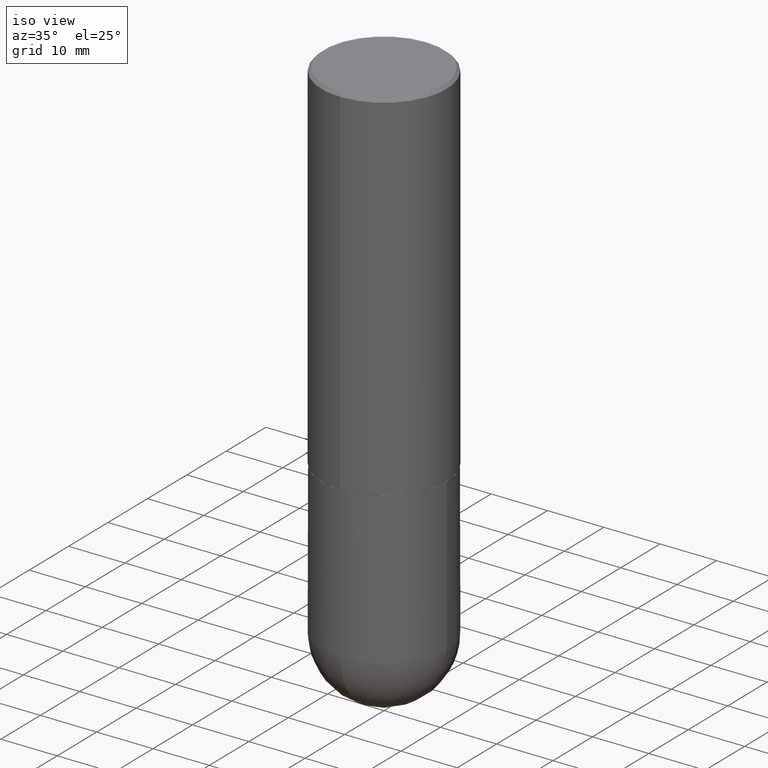
[diagram: clean part render]
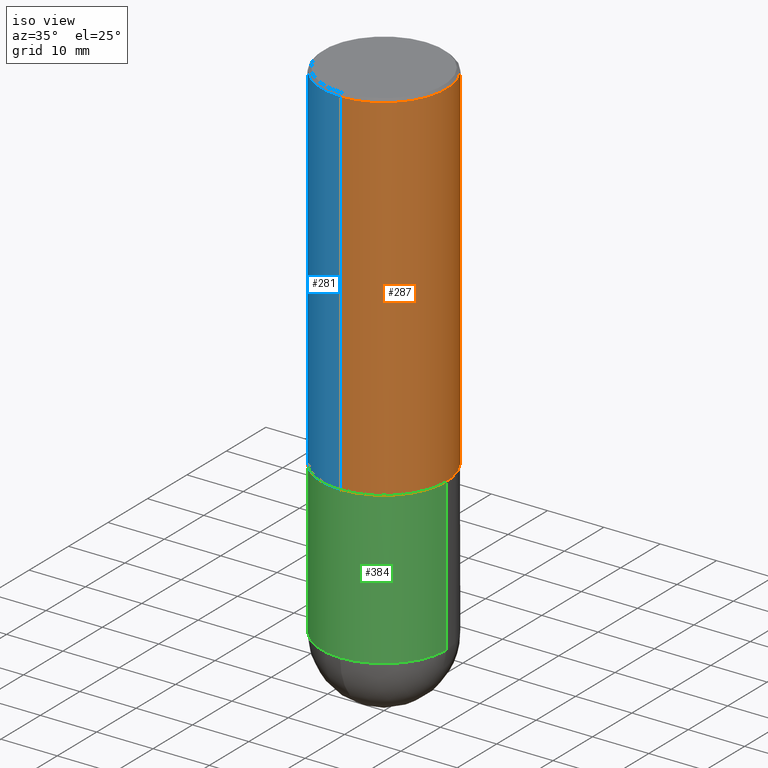
[diagram: same view with three faces highlighted in distinct colors, each labeled with its STEP entity id]
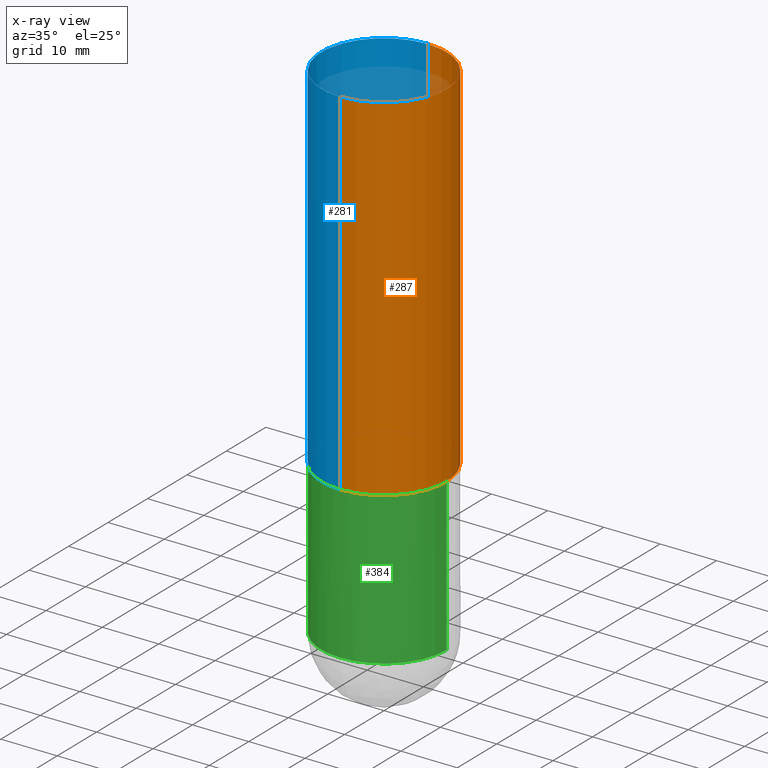
[diagram: x-ray of the same camera — body ghosted, the three highlighted faces saturated]
A machine part, iso view with three faces highlighted in distinct colors.
The next image is the same camera in x-ray (body ghosted, the three faces saturated) — at least one of them is partly hidden behind the body in this view.
Their STEP definitions:

[orange] entity #287 — the highlighted cylindrical surface (partial cylindrical patch) has radius 11.1125 mm, axis along (-0, 0, 1).
#2 = AXIS2_PLACEMENT_3D ( 'NONE', #242, #365, #87 ) ;
#6 = DIRECTION ( 'NONE',  ( -2.445589378329462952E-29, 3.491308672669929878E-15, 1.000000000000000000 ) ) ;
#48 = VERTEX_POINT ( 'NONE', #164 ) ;
#66 = LINE ( 'NONE', #161, #68 ) ;
#68 = VECTOR ( 'NONE', #224, 39.37007874015748143 ) ;
#78 = AXIS2_PLACEMENT_3D ( 'NONE', #371, #177, #249 ) ;
#87 = DIRECTION ( 'NONE',  ( -6.982962677686265922E-15, -1.000000000000000000, 3.491308672669929878E-15 ) ) ;
#90 = CIRCLE ( 'NONE', #78, 0.4375000000000000000 ) ;
#100 = CIRCLE ( 'NONE', #323, 0.4375000000000002776 ) ;
#154 = CYLINDRICAL_SURFACE ( 'NONE', #2, 0.4375000000000001110 ) ;
#157 = EDGE_CURVE ( 'NONE', #48, #326, #100, .T. ) ;
#161 = CARTESIAN_POINT ( 'NONE',  ( 3.108624468950438708E-15, 0.4375000000000001110, -1.527447544293094691E-15 ) ) ;
#164 = CARTESIAN_POINT ( 'NONE',  ( -3.055046171487681732E-15, -0.4375000000000089928, -2.498999999999998778 ) ) ;
#166 = DIRECTION ( 'NONE',  ( -2.445589378329463232E-29, 3.491308672669929878E-15, 1.000000000000000000 ) ) ;
#177 = DIRECTION ( 'NONE',  ( -2.445589378329462952E-29, 3.491308672669929878E-15, 1.000000000000000000 ) ) ;
#183 = FACE_OUTER_BOUND ( 'NONE', #204, .T. ) ;
#194 = EDGE_CURVE ( 'NONE', #48, #399, #350, .T. ) ;
#196 = CARTESIAN_POINT ( 'NONE',  ( -3.001467874025043875E-15, -0.4375000000000000555, -0.01999999999999857100 ) ) ;
#203 = ORIENTED_EDGE ( 'NONE', *, *, #325, .F. ) ;
#204 = EDGE_LOOP ( 'NONE', ( #295, #235, #203, #297 ) ) ;
#224 = DIRECTION ( 'NONE',  ( -2.445589378329463232E-29, 3.491308672669929878E-15, 1.000000000000000000 ) ) ;
#235 = ORIENTED_EDGE ( 'NONE', *, *, #398, .T. ) ;
#242 = CARTESIAN_POINT ( 'NONE',  ( 0.000000000000000000, 0.000000000000000000, 0.000000000000000000 ) ) ;
#249 = DIRECTION ( 'NONE',  ( -6.982962677686265133E-15, -1.000000000000000000, 3.492862791899308071E-15 ) ) ;
#253 = DIRECTION ( 'NONE',  ( -6.982962677686265133E-15, -1.000000000000000000, 3.746534391310987190E-15 ) ) ;
#287 = ADVANCED_FACE ( 'NONE', ( #183 ), #154, .T. ) ;
#295 = ORIENTED_EDGE ( 'NONE', *, *, #157, .T. ) ;
#297 = ORIENTED_EDGE ( 'NONE', *, *, #194, .F. ) ;
#313 = VERTEX_POINT ( 'NONE', #373 ) ;
#314 = CARTESIAN_POINT ( 'NONE',  ( -3.055046171487742080E-15, -0.4375000000000001110, 1.527447544293094691E-15 ) ) ;
#318 = CARTESIAN_POINT ( 'NONE',  ( 3.108624468950470262E-15, 0.4374999999999915068, -2.499000000000001886 ) ) ;
#323 = AXIS2_PLACEMENT_3D ( 'NONE', #355, #6, #253 ) ;
#325 = EDGE_CURVE ( 'NONE', #399, #313, #90, .T. ) ;
#326 = VERTEX_POINT ( 'NONE', #318 ) ;
#350 = LINE ( 'NONE', #314, #395 ) ;
#355 = CARTESIAN_POINT ( 'NONE',  ( 6.111527856445329127E-29, -8.724780373002155797E-15, -2.499000000000000110 ) ) ;
#365 = DIRECTION ( 'NONE',  ( -2.445589378329462952E-29, 3.491308672669929878E-15, 1.000000000000000000 ) ) ;
#371 = CARTESIAN_POINT ( 'NONE',  ( 4.891178756658950356E-31, -6.982617345339894070E-17, -0.02000000000000009756 ) ) ;
#373 = CARTESIAN_POINT ( 'NONE',  ( 3.055046171487741686E-15, 0.4374999999999998890, -0.02000000000000162759 ) ) ;
#395 = VECTOR ( 'NONE', #166, 39.37007874015748143 ) ;
#398 = EDGE_CURVE ( 'NONE', #326, #313, #66, .T. ) ;
#399 = VERTEX_POINT ( 'NONE', #196 ) ;

[blue] entity #281 — the highlighted cylindrical surface (partial cylindrical patch) has radius 11.1125 mm, axis along (-0, 0, 1).
#16 = ORIENTED_EDGE ( 'NONE', *, *, #398, .F. ) ;
#48 = VERTEX_POINT ( 'NONE', #164 ) ;
#66 = LINE ( 'NONE', #161, #68 ) ;
#68 = VECTOR ( 'NONE', #224, 39.37007874015748143 ) ;
#93 = EDGE_CURVE ( 'NONE', #326, #48, #379, .T. ) ;
#119 = AXIS2_PLACEMENT_3D ( 'NONE', #381, #250, #215 ) ;
#161 = CARTESIAN_POINT ( 'NONE',  ( 3.108624468950438708E-15, 0.4375000000000001110, -1.527447544293094691E-15 ) ) ;
#164 = CARTESIAN_POINT ( 'NONE',  ( -3.055046171487681732E-15, -0.4375000000000089928, -2.498999999999998778 ) ) ;
#166 = DIRECTION ( 'NONE',  ( -2.445589378329463232E-29, 3.491308672669929878E-15, 1.000000000000000000 ) ) ;
#173 = EDGE_LOOP ( 'NONE', ( #16, #206, #403, #305 ) ) ;
#180 = CYLINDRICAL_SURFACE ( 'NONE', #387, 0.4375000000000001110 ) ;
#194 = EDGE_CURVE ( 'NONE', #48, #399, #350, .T. ) ;
#196 = CARTESIAN_POINT ( 'NONE',  ( -3.001467874025043875E-15, -0.4375000000000000555, -0.01999999999999857100 ) ) ;
#206 = ORIENTED_EDGE ( 'NONE', *, *, #93, .T. ) ;
#208 = CARTESIAN_POINT ( 'NONE',  ( 0.000000000000000000, 0.000000000000000000, 0.000000000000000000 ) ) ;
#215 = DIRECTION ( 'NONE',  ( -6.982962677686265133E-15, -1.000000000000000000, 3.492862791899308071E-15 ) ) ;
#221 = DIRECTION ( 'NONE',  ( -6.982962677686265133E-15, -1.000000000000000000, 3.746534391310987190E-15 ) ) ;
#224 = DIRECTION ( 'NONE',  ( -2.445589378329463232E-29, 3.491308672669929878E-15, 1.000000000000000000 ) ) ;
#250 = DIRECTION ( 'NONE',  ( -2.445589378329462952E-29, 3.491308672669929878E-15, 1.000000000000000000 ) ) ;
#281 = ADVANCED_FACE ( 'NONE', ( #332 ), #180, .T. ) ;
#289 = CIRCLE ( 'NONE', #119, 0.4375000000000000000 ) ;
#298 = DIRECTION ( 'NONE',  ( -2.445589378329462952E-29, 3.491308672669929878E-15, 1.000000000000000000 ) ) ;
#305 = ORIENTED_EDGE ( 'NONE', *, *, #353, .F. ) ;
#313 = VERTEX_POINT ( 'NONE', #373 ) ;
#314 = CARTESIAN_POINT ( 'NONE',  ( -3.055046171487742080E-15, -0.4375000000000001110, 1.527447544293094691E-15 ) ) ;
#318 = CARTESIAN_POINT ( 'NONE',  ( 3.108624468950470262E-15, 0.4374999999999915068, -2.499000000000001886 ) ) ;
#326 = VERTEX_POINT ( 'NONE', #318 ) ;
#332 = FACE_OUTER_BOUND ( 'NONE', #173, .T. ) ;
#340 = CARTESIAN_POINT ( 'NONE',  ( 6.111527856445329127E-29, -8.724780373002155797E-15, -2.499000000000000110 ) ) ;
#350 = LINE ( 'NONE', #314, #395 ) ;
#353 = EDGE_CURVE ( 'NONE', #313, #399, #289, .T. ) ;
#354 = DIRECTION ( 'NONE',  ( -6.982962677686265922E-15, -1.000000000000000000, 3.491308672669929878E-15 ) ) ;
#373 = CARTESIAN_POINT ( 'NONE',  ( 3.055046171487741686E-15, 0.4374999999999998890, -0.02000000000000162759 ) ) ;
#379 = CIRCLE ( 'NONE', #408, 0.4375000000000002776 ) ;
#380 = DIRECTION ( 'NONE',  ( -2.445589378329462952E-29, 3.491308672669929878E-15, 1.000000000000000000 ) ) ;
#381 = CARTESIAN_POINT ( 'NONE',  ( 4.891178756658950356E-31, -6.982617345339894070E-17, -0.02000000000000009756 ) ) ;
#387 = AXIS2_PLACEMENT_3D ( 'NONE', #208, #298, #354 ) ;
#395 = VECTOR ( 'NONE', #166, 39.37007874015748143 ) ;
#398 = EDGE_CURVE ( 'NONE', #326, #313, #66, .T. ) ;
#399 = VERTEX_POINT ( 'NONE', #196 ) ;
#403 = ORIENTED_EDGE ( 'NONE', *, *, #194, .T. ) ;
#408 = AXIS2_PLACEMENT_3D ( 'NONE', #340, #380, #221 ) ;

[green] entity #384 — the highlighted cylindrical surface (partial cylindrical patch) has radius 11.1125 mm, axis along (-0, 0, 1).
#3 = CARTESIAN_POINT ( 'NONE',  ( 0.4374999999999998890, -3.055046171487740897E-15, 2.133327339410721209E-29 ) ) ;
#8 = VERTEX_POINT ( 'NONE', #30 ) ;
#9 = CARTESIAN_POINT ( 'NONE',  ( 6.113672015462842613E-29, -8.728703347107864943E-15, -2.500000000000000000 ) ) ;
#30 = CARTESIAN_POINT ( 'NONE',  ( 0.4375000000000000000, -1.178374951859560505E-14, -2.500000000000000000 ) ) ;
#33 = DIRECTION ( 'NONE',  ( 1.000000000000000000, -6.982962677686265133E-15, 0.000000000000000000 ) ) ;
#53 = AXIS2_PLACEMENT_3D ( 'NONE', #63, #348, #280 ) ;
#55 = CARTESIAN_POINT ( 'NONE',  ( 8.711982622034549126E-29, -1.243840226962870597E-14, -3.562500000000000000 ) ) ;
#63 = CARTESIAN_POINT ( 'NONE',  ( 0.000000000000000000, 0.000000000000000000, 0.000000000000000000 ) ) ;
#70 = CARTESIAN_POINT ( 'NONE',  ( 8.711982622034549126E-29, -1.243840226962870597E-14, -3.562500000000000000 ) ) ;
#75 = DIRECTION ( 'NONE',  ( -2.445468806185136877E-29, 3.491481338843145188E-15, 1.000000000000000000 ) ) ;
#77 = CARTESIAN_POINT ( 'NONE',  ( -0.4374999999999998890, 3.108624468950437524E-15, -2.152034101986520964E-29 ) ) ;
#79 = ORIENTED_EDGE ( 'NONE', *, *, #152, .T. ) ;
#95 = CARTESIAN_POINT ( 'NONE',  ( 0.4374999999999998890, -1.363859897985603030E-14, -3.562500000000000000 ) ) ;
#99 = DIRECTION ( 'NONE',  ( 1.000000000000000000, -6.982962677686265133E-15, 0.000000000000000000 ) ) ;
#104 = FACE_OUTER_BOUND ( 'NONE', #117, .T. ) ;
#117 = EDGE_LOOP ( 'NONE', ( #186, #79, #269, #144, #210 ) ) ;
#130 = CYLINDRICAL_SURFACE ( 'NONE', #53, 0.4374999999999998890 ) ;
#144 = ORIENTED_EDGE ( 'NONE', *, *, #317, .T. ) ;
#152 = EDGE_CURVE ( 'NONE', #397, #293, #402, .T. ) ;
#158 = EDGE_CURVE ( 'NONE', #243, #8, #227, .T. ) ;
#186 = ORIENTED_EDGE ( 'NONE', *, *, #278, .F. ) ;
#200 = VECTOR ( 'NONE', #234, 39.37007874015748143 ) ;
#210 = ORIENTED_EDGE ( 'NONE', *, *, #158, .F. ) ;
#226 = CARTESIAN_POINT ( 'NONE',  ( -0.4375000000000000000, -7.474928339417847141E-15, -2.500000000000000000 ) ) ;
#227 = CIRCLE ( 'NONE', #359, 0.4375000000000000000 ) ;
#229 = DIRECTION ( 'NONE',  ( 1.000000000000000000, -6.982962677686265133E-15, 0.000000000000000000 ) ) ;
#230 = DIRECTION ( 'NONE',  ( -2.445468806185136597E-29, 3.491481338843145583E-15, 1.000000000000000000 ) ) ;
#234 = DIRECTION ( 'NONE',  ( -2.445468806185136877E-29, 3.491481338843145188E-15, 1.000000000000000000 ) ) ;
#243 = VERTEX_POINT ( 'NONE', #226 ) ;
#248 = EDGE_CURVE ( 'NONE', #293, #336, #321, .T. ) ;
#260 = DIRECTION ( 'NONE',  ( -2.445468806185136597E-29, 3.491481338843145583E-15, 1.000000000000000000 ) ) ;
#269 = ORIENTED_EDGE ( 'NONE', *, *, #248, .T. ) ;
#274 = AXIS2_PLACEMENT_3D ( 'NONE', #55, #377, #99 ) ;
#277 = VECTOR ( 'NONE', #75, 39.37007874015748143 ) ;
#278 = EDGE_CURVE ( 'NONE', #397, #243, #357, .T. ) ;
#280 = DIRECTION ( 'NONE',  ( 1.000000000000000000, -6.982962677686266711E-15, 4.876176775795935232E-29 ) ) ;
#293 = VERTEX_POINT ( 'NONE', #301 ) ;
#301 = CARTESIAN_POINT ( 'NONE',  ( -3.108624468950352327E-15, -0.4375000000000127676, -3.562499999999998224 ) ) ;
#311 = AXIS2_PLACEMENT_3D ( 'NONE', #70, #230, #33 ) ;
#317 = EDGE_CURVE ( 'NONE', #336, #8, #319, .T. ) ;
#319 = LINE ( 'NONE', #3, #277 ) ;
#321 = CIRCLE ( 'NONE', #311, 0.4374999999999998890 ) ;
#336 = VERTEX_POINT ( 'NONE', #95 ) ;
#348 = DIRECTION ( 'NONE',  ( -2.445468806185136597E-29, 3.491481338843145583E-15, 1.000000000000000000 ) ) ;
#357 = LINE ( 'NONE', #77, #200 ) ;
#359 = AXIS2_PLACEMENT_3D ( 'NONE', #9, #260, #229 ) ;
#377 = DIRECTION ( 'NONE',  ( -2.445468806185136597E-29, 3.491481338843145583E-15, 1.000000000000000000 ) ) ;
#384 = ADVANCED_FACE ( 'NONE', ( #104 ), #130, .T. ) ;
#397 = VERTEX_POINT ( 'NONE', #412 ) ;
#402 = CIRCLE ( 'NONE', #274, 0.4374999999999998890 ) ;
#412 = CARTESIAN_POINT ( 'NONE',  ( -0.4374999999999998890, -7.474928339417851874E-15, -3.562500000000000000 ) ) ;